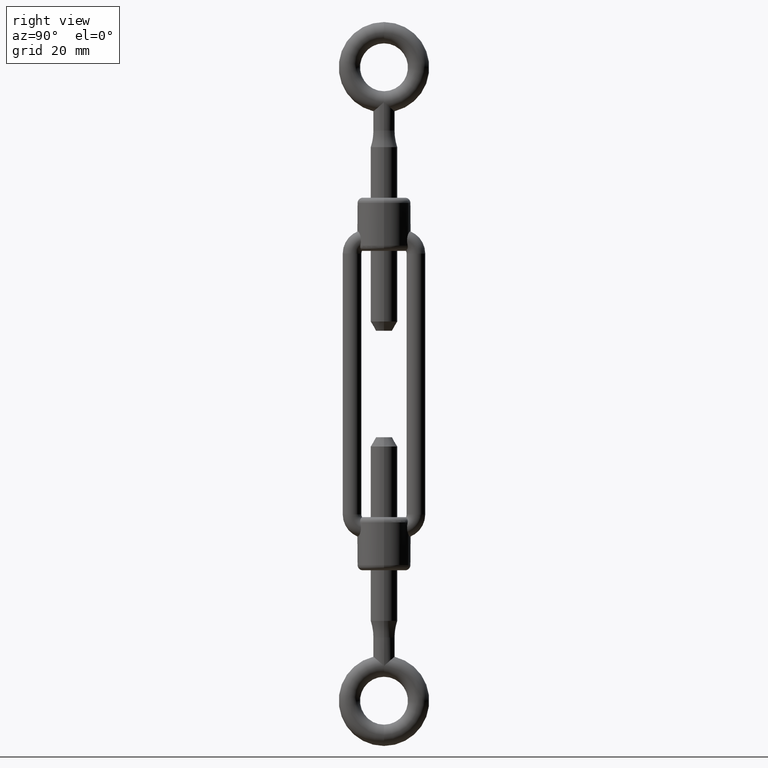
[diagram: clean part render]
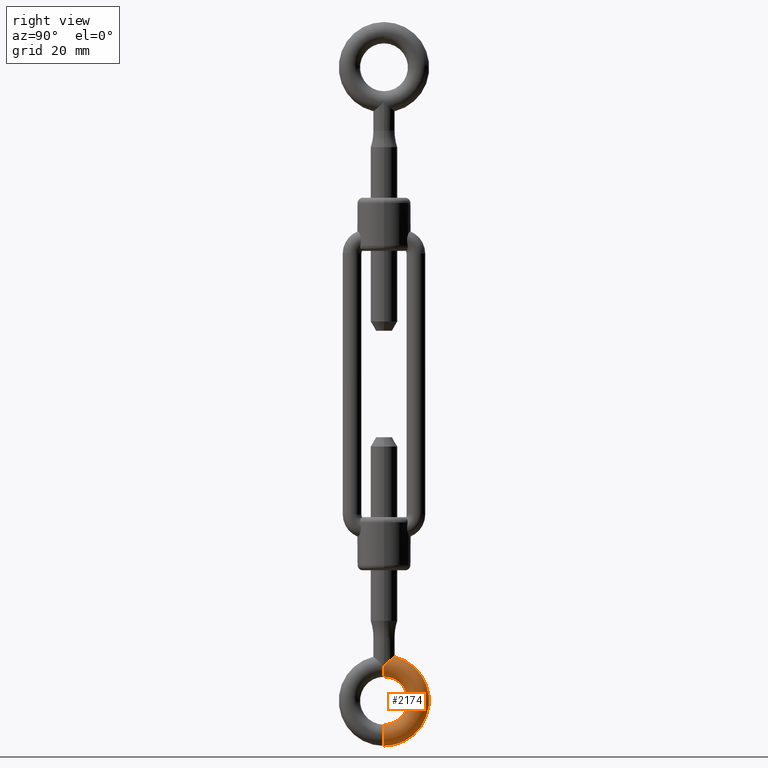
[diagram: same view with one face highlighted and labeled with its STEP entity id]
A machine part, right view. The second image highlights one B-rep face of the part: STEP entity #2174.
In plain terms, the highlighted toroidal blend (fillet) surface has major radius 6.5 mm and minor (blend) radius 2 mm.
Its self-contained STEP definition (entity closure, byte-faithful):
#46 = CARTESIAN_POINT ( 'NONE',  ( -0.2183672625435844300, -15.21826110338469800, 1.999999999999999100 ) ) ;
#395 = VERTEX_POINT ( 'NONE', #15246 ) ;
#1488 = CARTESIAN_POINT ( 'NONE',  ( -2.000000000000000000, -16.76135582092915400, -2.163811591569531500E-015 ) ) ;
#1716 = ORIENTED_EDGE ( 'NONE', *, *, #4742, .F. ) ;
#1775 = CARTESIAN_POINT ( 'NONE',  ( 5.510910596163090500E-016, -13.00000000000000200, -6.800853944377627700E-016 ) ) ;
#2174 = ADVANCED_FACE ( 'NONE', ( #5925 ), #7709, .T. ) ;
#2357 = AXIS2_PLACEMENT_3D ( 'NONE', #11634, #3068, #7505 ) ;
#2717 = VERTEX_POINT ( 'NONE', #15631 ) ;
#3014 = CARTESIAN_POINT ( 'NONE',  ( -0.7716318621900560800, -15.73126240671844300, 1.848790287369641800 ) ) ;
#3068 = DIRECTION ( 'NONE',  ( -1.000000000000000000, 0.0000000000000000000, 0.0000000000000000000 ) ) ;
#3455 = DIRECTION ( 'NONE',  ( -0.0000000000000000000, 1.423099621949589700E-016, -1.000000000000000000 ) ) ;
#3566 = CARTESIAN_POINT ( 'NONE',  ( 0.0000000000000000000, -8.500000000000000000, -6.800853944377627700E-016 ) ) ;
#4062 = EDGE_CURVE ( 'NONE', #2717, #16523, #4959, .T. ) ;
#4742 = EDGE_CURVE ( 'NONE', #10832, #16523, #9240, .T. ) ;
#4959 = CIRCLE ( 'NONE', #2357, 2.000000000000000000 ) ;
#5136 = DIRECTION ( 'NONE',  ( 1.000000000000000000, 1.224646799147353200E-016, 1.742794396888373400E-032 ) ) ;
#5703 = CARTESIAN_POINT ( 'NONE',  ( -1.912640337074871700, -16.69237888471416700, 0.6039466647389549700 ) ) ;
#5765 = AXIS2_PLACEMENT_3D ( 'NONE', #6499, #3455, #9173 ) ;
#5925 = FACE_OUTER_BOUND ( 'NONE', #5981, .T. ) ;
#5981 = EDGE_LOOP ( 'NONE', ( #1716, #11856, #8744, #16326, #10219 ) ) ;
#6115 = CARTESIAN_POINT ( 'NONE',  ( 0.0000000000000000000, -8.500000000000000000, -9.250147542672335600E-016 ) ) ;
#6163 = VERTEX_POINT ( 'NONE', #1775 ) ;
#6499 = CARTESIAN_POINT ( 'NONE',  ( 0.0000000000000000000, -8.500000000000000000, -9.250147542672335600E-016 ) ) ;
#7069 = CIRCLE ( 'NONE', #15523, 2.000000000000000000 ) ;
#7270 = CARTESIAN_POINT ( 'NONE',  ( -1.861388429120811600, -16.65172851392473800, 0.7459657191218207500 ) ) ;
#7384 = B_SPLINE_CURVE_WITH_KNOTS ( 'NONE', 3,
 ( #11392, #46, #10098, #3014, #13029, #15926, #12835, #8707, #14275, #7270, #5703, #10033, #12901, #1488 ),
 .UNSPECIFIED., .F., .F.,
 ( 4, 2, 2, 2, 2, 2, 4 ),
 ( -8.944277770001189800E-006, 0.0009172838053670077500, 0.001380397846935510700, 0.001843511888504013600, 0.002769739971641019200, 0.003232854013209522300, 0.003695968054778025400 ),
 .UNSPECIFIED. ) ;
#7505 = DIRECTION ( 'NONE',  ( 0.0000000000000000000, 0.0000000000000000000, 1.000000000000000000 ) ) ;
#7609 = DIRECTION ( 'NONE',  ( -0.0000000000000000000, 1.423099621949589700E-016, -1.000000000000000000 ) ) ;
#7709 = TOROIDAL_SURFACE ( 'NONE', #7892, 6.500000000000000900, 2.000000000000000000 ) ;
#7892 = AXIS2_PLACEMENT_3D ( 'NONE', #6115, #7609, #16134 ) ;
#8399 = CIRCLE ( 'NONE', #14688, 4.500000000000000900 ) ;
#8707 = CARTESIAN_POINT ( 'NONE',  ( -1.492019356441036700, -16.35326771043616000, 1.356579992780230900 ) ) ;
#8744 = ORIENTED_EDGE ( 'NONE', *, *, #13518, .F. ) ;
#9173 = DIRECTION ( 'NONE',  ( 0.0000000000000000000, 1.000000000000000000, 1.423099621949590000E-016 ) ) ;
#9240 = CIRCLE ( 'NONE', #5765, 8.500000000000000000 ) ;
#10033 = CARTESIAN_POINT ( 'NONE',  ( -1.981784038482441900, -16.74705643905806000, 0.3089929734984417400 ) ) ;
#10098 = CARTESIAN_POINT ( 'NONE',  ( -0.4434426662303963000, -15.43213688601069000, 1.963956117494315200 ) ) ;
#10219 = ORIENTED_EDGE ( 'NONE', *, *, #4062, .T. ) ;
#10832 = VERTEX_POINT ( 'NONE', #13606 ) ;
#11352 = EDGE_CURVE ( 'NONE', #6163, #2717, #8399, .T. ) ;
#11392 = CARTESIAN_POINT ( 'NONE',  ( -1.047705889746656300E-028, -15.00000000000000200, 2.000000000000025800 ) ) ;
#11634 = CARTESIAN_POINT ( 'NONE',  ( 0.0000000000000000000, -2.000000000000000000, 0.0000000000000000000 ) ) ;
#11856 = ORIENTED_EDGE ( 'NONE', *, *, #17961, .F. ) ;
#12050 = DIRECTION ( 'NONE',  ( -1.224646799147353000E-016, 1.000000000000000000, 0.0000000000000000000 ) ) ;
#12835 = CARTESIAN_POINT ( 'NONE',  ( -1.197505991907235300, -16.10424016054894400, 1.607042985905434000 ) ) ;
#12901 = CARTESIAN_POINT ( 'NONE',  ( -2.000000000000000400, -16.76135582092916100, 0.1532203103521513300 ) ) ;
#13029 = CARTESIAN_POINT ( 'NONE',  ( -0.8798440579475177400, -15.82780116562604000, 1.800237263394103100 ) ) ;
#13518 = EDGE_CURVE ( 'NONE', #6163, #395, #7069, .T. ) ;
#13606 = CARTESIAN_POINT ( 'NONE',  ( -2.000000000000000000, -16.76135582092915400, -2.163811591569531500E-015 ) ) ;
#14275 = CARTESIAN_POINT ( 'NONE',  ( -1.669722117435056700, -16.49793099940910700, 1.138839322831339600 ) ) ;
#14688 = AXIS2_PLACEMENT_3D ( 'NONE', #3566, #16416, #16359 ) ;
#15246 = CARTESIAN_POINT ( 'NONE',  ( -1.047705889746656300E-028, -15.00000000000000200, 2.000000000000025800 ) ) ;
#15523 = AXIS2_PLACEMENT_3D ( 'NONE', #16545, #5136, #12050 ) ;
#15631 = CARTESIAN_POINT ( 'NONE',  ( 0.0000000000000000000, -4.000000000000000000, -6.800853944377627700E-016 ) ) ;
#15926 = CARTESIAN_POINT ( 'NONE',  ( -1.092791064714858400, -16.01431839962399600, 1.679520008722018600 ) ) ;
#16134 = DIRECTION ( 'NONE',  ( 0.0000000000000000000, 1.000000000000000000, 1.423099621949589700E-016 ) ) ;
#16326 = ORIENTED_EDGE ( 'NONE', *, *, #11352, .T. ) ;
#16359 = DIRECTION ( 'NONE',  ( 0.0000000000000000000, 1.000000000000000000, 1.423099621949589700E-016 ) ) ;
#16416 = DIRECTION ( 'NONE',  ( -0.0000000000000000000, 1.423099621949589700E-016, -1.000000000000000000 ) ) ;
#16523 = VERTEX_POINT ( 'NONE', #18246 ) ;
#16545 = CARTESIAN_POINT ( 'NONE',  ( 7.960204194457796500E-016, -15.00000000000000200, -1.850029508534467100E-015 ) ) ;
#17961 = EDGE_CURVE ( 'NONE', #395, #10832, #7384, .T. ) ;
#18246 = CARTESIAN_POINT ( 'NONE',  ( 0.0000000000000000000, 0.0000000000000000000, 2.846199243899179400E-016 ) ) ;